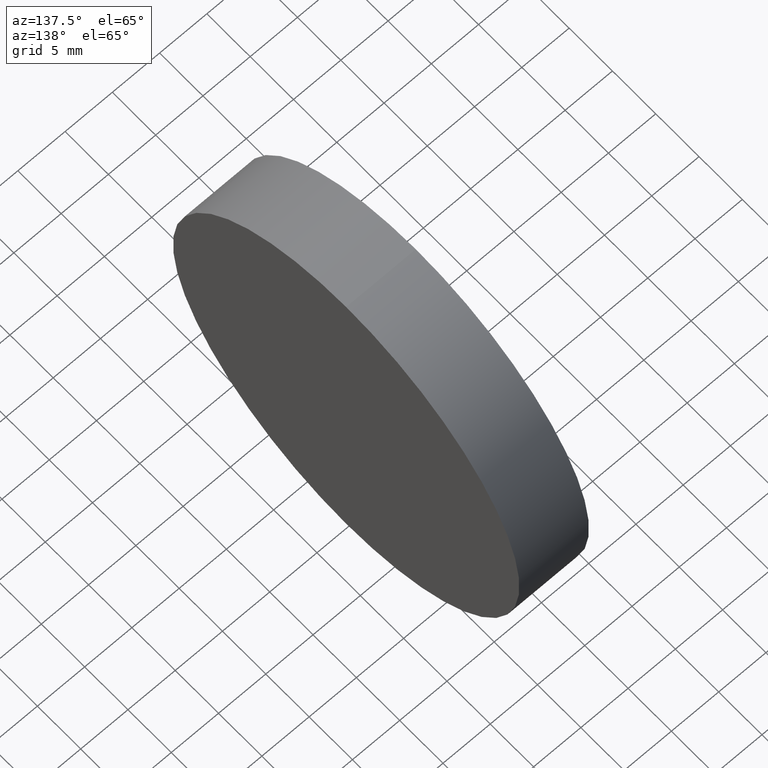
[diagram: clean part render]
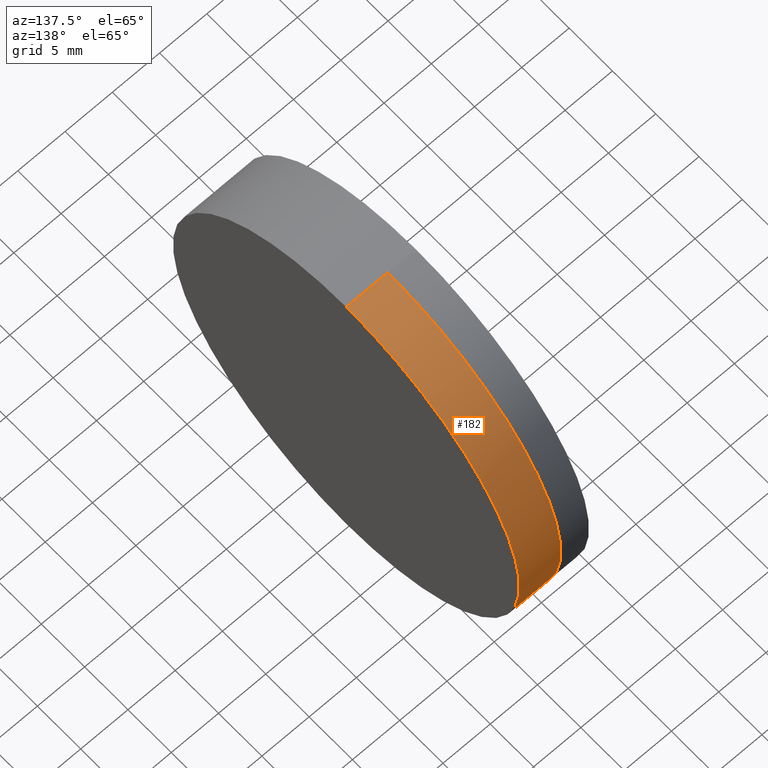
[diagram: same view with one face highlighted and labeled with its STEP entity id]
A machine part, auxiliary view. The second image highlights one B-rep face of the part: STEP entity #182.
In plain terms, the highlighted cylindrical surface (partial cylindrical patch) has radius 20 mm, axis along (-1, -0, -0).
Its self-contained STEP definition (entity closure, byte-faithful):
#10 = VECTOR ( 'NONE', #281, 1000.000000000000000 ) ;
#12 = CIRCLE ( 'NONE', #229, 20.00000000000019500 ) ;
#18 = CIRCLE ( 'NONE', #55, 20.00000000000019500 ) ;
#23 = DIRECTION ( 'NONE',  ( -1.000000000000000000, -0.0000000000000000000, -0.0000000000000000000 ) ) ;
#31 = CYLINDRICAL_SURFACE ( 'NONE', #77, 20.00000000000019500 ) ;
#36 = ORIENTED_EDGE ( 'NONE', *, *, #268, .T. ) ;
#53 = CARTESIAN_POINT ( 'NONE',  ( -0.5519199926577972300, 0.0000000000000000000, 20.00000000000019500 ) ) ;
#55 = AXIS2_PLACEMENT_3D ( 'NONE', #203, #230, #74 ) ;
#67 = VERTEX_POINT ( 'NONE', #315 ) ;
#69 = FACE_OUTER_BOUND ( 'NONE', #266, .T. ) ;
#74 = DIRECTION ( 'NONE',  ( 0.0000000000000000000, 0.0000000000000000000, 1.000000000000000000 ) ) ;
#77 = AXIS2_PLACEMENT_3D ( 'NONE', #110, #154, #316 ) ;
#90 = CARTESIAN_POINT ( 'NONE',  ( 657.5142120742816600, 2.449293598294727800E-015, -20.00000000000030900 ) ) ;
#110 = CARTESIAN_POINT ( 'NONE',  ( -0.5519199926577972300, 0.0000000000000000000, 0.0000000000000000000 ) ) ;
#113 = CARTESIAN_POINT ( 'NONE',  ( 661.9090846041468700, 0.0000000000000000000, 20.00000000000019500 ) ) ;
#116 = LINE ( 'NONE', #53, #275 ) ;
#120 = EDGE_CURVE ( 'NONE', #184, #290, #116, .T. ) ;
#130 = EDGE_CURVE ( 'NONE', #67, #198, #291, .T. ) ;
#132 = CARTESIAN_POINT ( 'NONE',  ( -0.5519199926577972300, 2.449293598294730200E-015, -20.00000000000019500 ) ) ;
#154 = DIRECTION ( 'NONE',  ( -1.000000000000000000, -0.0000000000000000000, -0.0000000000000000000 ) ) ;
#158 = CARTESIAN_POINT ( 'NONE',  ( 657.5142120742816600, 0.0000000000000000000, 0.0000000000000000000 ) ) ;
#182 = ADVANCED_FACE ( 'NONE', ( #69 ), #31, .T. ) ;
#183 = DIRECTION ( 'NONE',  ( -1.000000000000000000, -0.0000000000000000000, -0.0000000000000000000 ) ) ;
#184 = VERTEX_POINT ( 'NONE', #113 ) ;
#196 = EDGE_CURVE ( 'NONE', #290, #198, #12, .T. ) ;
#198 = VERTEX_POINT ( 'NONE', #90 ) ;
#203 = CARTESIAN_POINT ( 'NONE',  ( 661.9090846041468700, 0.0000000000000000000, 0.0000000000000000000 ) ) ;
#229 = AXIS2_PLACEMENT_3D ( 'NONE', #158, #23, #267 ) ;
#230 = DIRECTION ( 'NONE',  ( -1.000000000000000000, -0.0000000000000000000, -0.0000000000000000000 ) ) ;
#233 = ORIENTED_EDGE ( 'NONE', *, *, #196, .F. ) ;
#254 = CARTESIAN_POINT ( 'NONE',  ( 657.5142120742816600, 0.0000000000000000000, 20.00000000000017400 ) ) ;
#266 = EDGE_LOOP ( 'NONE', ( #36, #297, #233, #317 ) ) ;
#267 = DIRECTION ( 'NONE',  ( 0.0000000000000000000, 0.0000000000000000000, 1.000000000000000000 ) ) ;
#268 = EDGE_CURVE ( 'NONE', #184, #67, #18, .T. ) ;
#275 = VECTOR ( 'NONE', #183, 1000.000000000000000 ) ;
#281 = DIRECTION ( 'NONE',  ( -1.000000000000000000, -0.0000000000000000000, -0.0000000000000000000 ) ) ;
#290 = VERTEX_POINT ( 'NONE', #254 ) ;
#291 = LINE ( 'NONE', #132, #10 ) ;
#297 = ORIENTED_EDGE ( 'NONE', *, *, #130, .T. ) ;
#315 = CARTESIAN_POINT ( 'NONE',  ( 661.9090846041468700, 2.449293598294730200E-015, -20.00000000000019500 ) ) ;
#316 = DIRECTION ( 'NONE',  ( 0.0000000000000000000, 0.0000000000000000000, 1.000000000000000000 ) ) ;
#317 = ORIENTED_EDGE ( 'NONE', *, *, #120, .F. ) ;